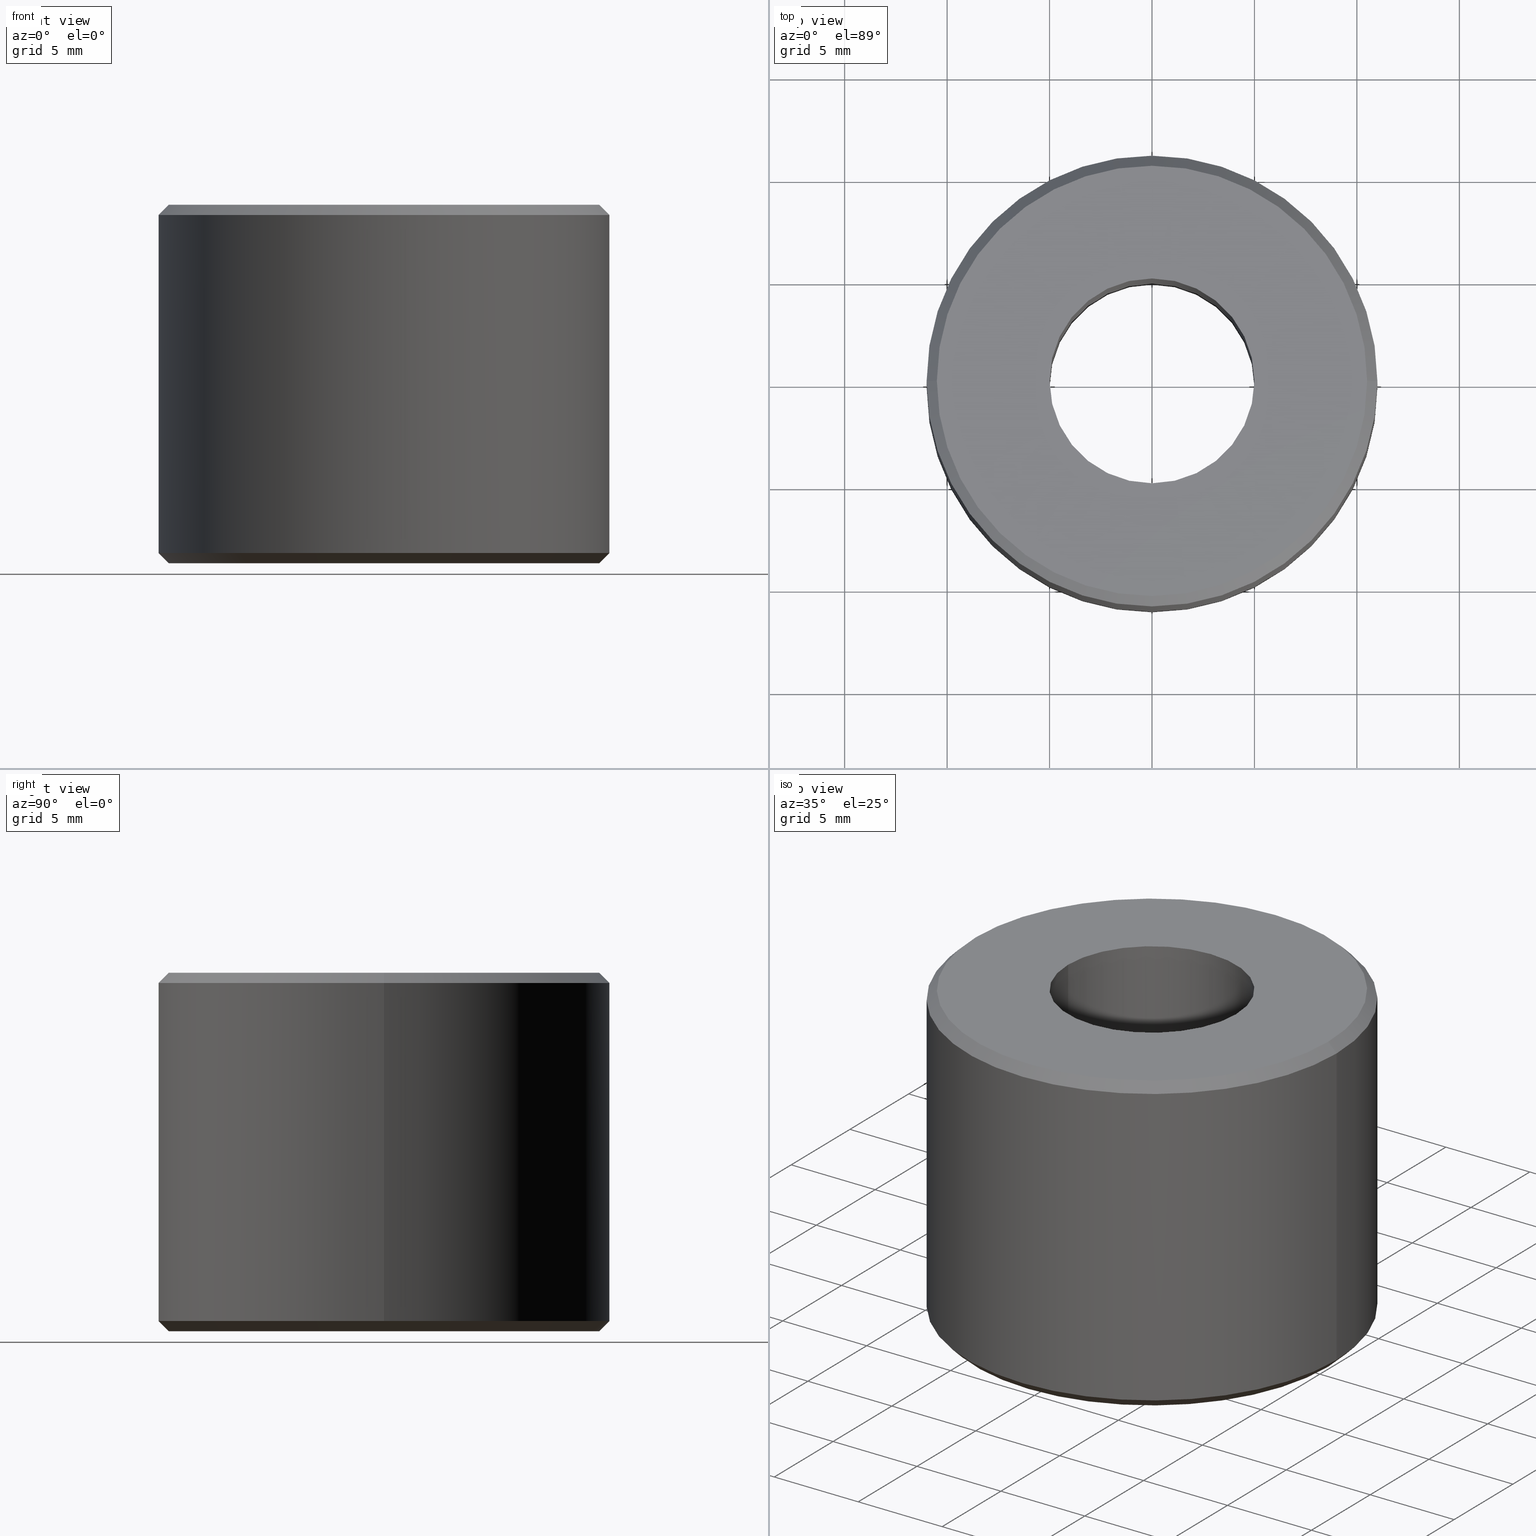
[diagram: canonical four-view strip — front | top / right | iso, engineering-drawing reading convention]
A machine part, canonical four-view strip (front | top / right | iso — engineering-drawing reading convention). The complete STEP part file that produces these views, byte-faithful:
ISO-10303-21;
HEADER;
FILE_DESCRIPTION (( 'STEP AP203' ),
    '1' );
FILE_NAME ('UM ER 16 M.STEP',
    '2019-04-22T08:59:13',
    ( '' ),
    ( '' ),
    'SwSTEP 2.0',
    'SolidWorks 2014',
    '' );
FILE_SCHEMA (( 'CONFIG_CONTROL_DESIGN' ));
ENDSEC;

DATA;
#1 = DIRECTION ( 'NONE',  ( 1.000000000000000000, 0.0000000000000000000, 0.0000000000000000000 ) ) ;
#2 = ORIENTED_EDGE ( 'NONE', *, *, #90, .T. ) ;
#3 = DIRECTION ( 'NONE',  ( -0.0000000000000000000, -0.0000000000000000000, 1.000000000000000000 ) ) ;
#4 = UNCERTAINTY_MEASURE_WITH_UNIT (LENGTH_MEASURE( 1.000000000000000100E-005 ), #173, 'distance_accuracy_value', 'NONE');
#5 = ORIENTED_EDGE ( 'NONE', *, *, #46, .F. ) ;
#6 = ORIENTED_EDGE ( 'NONE', *, *, #113, .T. ) ;
#7 = AXIS2_PLACEMENT_3D ( 'NONE', #239, #159, #211 ) ;
#8 = PERSON_AND_ORGANIZATION ( #341, #319 ) ;
#9 = FACE_OUTER_BOUND ( 'NONE', #192, .T. ) ;
#10 = EDGE_CURVE ( 'NONE', #26, #116, #66, .T. ) ;
#11 = FACE_OUTER_BOUND ( 'NONE', #60, .T. ) ;
#12 = ORIENTED_EDGE ( 'NONE', *, *, #323, .F. ) ;
#13 =( NAMED_UNIT ( * ) SI_UNIT ( $, .STERADIAN. ) SOLID_ANGLE_UNIT ( ) );
#14 = CC_DESIGN_APPROVAL ( #185, ( #19 ) ) ;
#15 = DIRECTION ( 'NONE',  ( -1.000000000000000000, 0.0000000000000000000, 0.0000000000000000000 ) ) ;
#16 = VERTEX_POINT ( 'NONE', #78 ) ;
#17 = CONICAL_SURFACE ( 'NONE', #312, 10.50000000000078700, 0.7853981633974482800 ) ;
#18 = PLANE ( 'NONE',  #282 ) ;
#19 = SECURITY_CLASSIFICATION ( '', '', #275 ) ;
#20 = CARTESIAN_POINT ( 'NONE',  ( 0.0000000000000000000, 0.0000000000000000000, 17.00000000000044400 ) ) ;
#21 = PERSON_AND_ORGANIZATION ( #341, #319 ) ;
#22 = CIRCLE ( 'NONE', #7, 11.00000000000006600 ) ;
#23 = DIRECTION ( 'NONE',  ( -0.7071067811865474600, 8.659560562354931600E-017, 0.7071067811865475700 ) ) ;
#24 = DIRECTION ( 'NONE',  ( 1.000000000000000000, 0.0000000000000000000, 0.0000000000000000000 ) ) ;
#25 = AXIS2_PLACEMENT_3D ( 'NONE', #180, #100, #320 ) ;
#26 = VERTEX_POINT ( 'NONE', #342 ) ;
#27 = CARTESIAN_POINT ( 'NONE',  ( 5.000000000000000000, 0.0000000000000000000, 4.440892098500626200E-013 ) ) ;
#28 = EDGE_LOOP ( 'NONE', ( #182, #44, #324, #223 ) ) ;
#29 = DIRECTION ( 'NONE',  ( -0.0000000000000000000, -0.0000000000000000000, 1.000000000000000000 ) ) ;
#30 = COORDINATED_UNIVERSAL_TIME_OFFSET ( 5, 30, .AHEAD. ) ;
#31 = APPROVAL_STATUS ( 'not_yet_approved' ) ;
#32 = MECHANICAL_CONTEXT ( 'NONE', #147, 'mechanical' ) ;
#33 = CARTESIAN_POINT ( 'NONE',  ( -10.50000000000078700, 1.316495309083456900E-015, 4.440892098500626200E-013 ) ) ;
#34 = DIRECTION ( 'NONE',  ( -0.0000000000000000000, -0.0000000000000000000, 1.000000000000000000 ) ) ;
#35 = CC_DESIGN_DATE_AND_TIME_ASSIGNMENT ( #127, #86, ( #19 ) ) ;
#36 = VERTEX_POINT ( 'NONE', #75 ) ;
#37 = SHAPE_DEFINITION_REPRESENTATION ( #54, #291 ) ;
#38 = CC_DESIGN_PERSON_AND_ORGANIZATION_ASSIGNMENT ( #242, #345, ( #266 ) ) ;
#39 = VERTEX_POINT ( 'NONE', #102 ) ;
#40 = ADVANCED_FACE ( 'NONE', ( #317 ), #257, .T. ) ;
#41 = LINE ( 'NONE', #229, #224 ) ;
#42 = LINE ( 'NONE', #179, #172 ) ;
#43 = FACE_OUTER_BOUND ( 'NONE', #249, .T. ) ;
#44 = ORIENTED_EDGE ( 'NONE', *, *, #216, .F. ) ;
#45 = DATE_AND_TIME ( #119, #194 ) ;
#46 = EDGE_CURVE ( 'NONE', #290, #39, #238, .T. ) ;
#47 = AXIS2_PLACEMENT_3D ( 'NONE', #176, #322, #151 ) ;
#48 = ORIENTED_EDGE ( 'NONE', *, *, #62, .F. ) ;
#49 = ADVANCED_FACE ( 'NONE', ( #197 ), #17, .T. ) ;
#50 = CARTESIAN_POINT ( 'NONE',  ( 4.999999999999999100, 0.0000000000000000000, 116.0570158932235600 ) ) ;
#51 = CYLINDRICAL_SURFACE ( 'NONE', #272, 11.00000000000006600 ) ;
#52 = APPROVAL_ROLE ( '' ) ;
#53 = ORIENTED_EDGE ( 'NONE', *, *, #206, .F. ) ;
#54 = PRODUCT_DEFINITION_SHAPE ( 'NONE', 'NONE',  #251 ) ;
#55 = PERSON_AND_ORGANIZATION_ROLE ( 'design_supplier' ) ;
#56 = DIRECTION ( 'NONE',  ( 0.0000000000000000000, -0.0000000000000000000, 1.000000000000000000 ) ) ;
#57 = PERSON_AND_ORGANIZATION ( #341, #319 ) ;
#58 = DIRECTION ( 'NONE',  ( -0.7071067811865574500, 0.0000000000000000000, -0.7071067811865376900 ) ) ;
#59 = CARTESIAN_POINT ( 'NONE',  ( 10.50000000000078700, 0.0000000000000000000, 4.440892098500626200E-013 ) ) ;
#60 = EDGE_LOOP ( 'NONE', ( #212, #12, #148, #2 ) ) ;
#61 = VERTEX_POINT ( 'NONE', #181 ) ;
#62 = EDGE_CURVE ( 'NONE', #116, #36, #68, .T. ) ;
#63 = CIRCLE ( 'NONE', #260, 4.999999999999999100 ) ;
#64 = VECTOR ( 'NONE', #297, 1000.000000000000000 ) ;
#65 = ORIENTED_EDGE ( 'NONE', *, *, #281, .T. ) ;
#66 = CIRCLE ( 'NONE', #47, 10.50000000000078700 ) ;
#67 = PERSON_AND_ORGANIZATION ( #341, #319 ) ;
#68 = LINE ( 'NONE', #129, #325 ) ;
#69 = LINE ( 'NONE', #271, #105 ) ;
#70 = CARTESIAN_POINT ( 'NONE',  ( 0.0000000000000000000, 0.0000000000000000000, 17.50000000000043300 ) ) ;
#71 = CARTESIAN_POINT ( 'NONE',  ( 0.0000000000000000000, 0.0000000000000000000, 4.440892098500626200E-013 ) ) ;
#72 = ORIENTED_EDGE ( 'NONE', *, *, #162, .F. ) ;
#73 = DIRECTION ( 'NONE',  ( -0.0000000000000000000, -0.0000000000000000000, 1.000000000000000000 ) ) ;
#74 = EDGE_CURVE ( 'NONE', #16, #274, #79, .T. ) ;
#75 = CARTESIAN_POINT ( 'NONE',  ( -11.00000000000006600, 1.347111479062096500E-015, 0.4999999999997228900 ) ) ;
#76 = CALENDAR_DATE ( 2019, 22, 4 ) ;
#77 = CYLINDRICAL_SURFACE ( 'NONE', #183, 4.999999999999999100 ) ;
#78 = CARTESIAN_POINT ( 'NONE',  ( -5.000000000000000000, 6.123233995736766300E-016, 4.440892098500626200E-013 ) ) ;
#79 = CIRCLE ( 'NONE', #346, 5.000000000000000000 ) ;
#80 = ORIENTED_EDGE ( 'NONE', *, *, #263, .T. ) ;
#81 = APPROVAL_STATUS ( 'not_yet_approved' ) ;
#82 = DIRECTION ( 'NONE',  ( -0.0000000000000000000, -0.0000000000000000000, 1.000000000000000000 ) ) ;
#83 = DATE_AND_TIME ( #153, #225 ) ;
#84 = CIRCLE ( 'NONE', #227, 10.50000000000078700 ) ;
#85 = CARTESIAN_POINT ( 'NONE',  ( 0.0000000000000000000, 0.0000000000000000000, 17.50000000000043300 ) ) ;
#86 = DATE_TIME_ROLE ( 'classification_date' ) ;
#87 = CARTESIAN_POINT ( 'NONE',  ( 0.0000000000000000000, 0.0000000000000000000, 116.0570158932235600 ) ) ;
#88 = CARTESIAN_POINT ( 'NONE',  ( 0.0000000000000000000, 5.000000000000000000, 4.440892098500626200E-013 ) ) ;
#89 = VECTOR ( 'NONE', #292, 1000.000000000000000 ) ;
#90 = EDGE_CURVE ( 'NONE', #334, #39, #214, .T. ) ;
#91 = ADVANCED_FACE ( 'NONE', ( #107, #92 ), #337, .F. ) ;
#92 = FACE_BOUND ( 'NONE', #267, .T. ) ;
#93 = EDGE_CURVE ( 'NONE', #61, #177, #168, .T. ) ;
#94 = CYLINDRICAL_SURFACE ( 'NONE', #270, 11.00000000000006600 ) ;
#95 = APPROVAL_DATE_TIME ( #160, #111 ) ;
#96 = DIRECTION ( 'NONE',  ( -0.0000000000000000000, -0.0000000000000000000, 1.000000000000000000 ) ) ;
#97 = CC_DESIGN_PERSON_AND_ORGANIZATION_ASSIGNMENT ( #67, #244, ( #19 ) ) ;
#98 = ORIENTED_EDGE ( 'NONE', *, *, #216, .T. ) ;
#99 = ADVANCED_FACE ( 'NONE', ( #299 ), #128, .F. ) ;
#100 = DIRECTION ( 'NONE',  ( -0.0000000000000000000, -0.0000000000000000000, 1.000000000000000000 ) ) ;
#101 = APPROVAL_PERSON_ORGANIZATION ( #169, #111, #327 ) ;
#102 = CARTESIAN_POINT ( 'NONE',  ( 11.00000000000006400, 0.0000000000000000000, 17.00000000000044400 ) ) ;
#103 = DIRECTION ( 'NONE',  ( -0.0000000000000000000, -0.0000000000000000000, 1.000000000000000000 ) ) ;
#104 = AXIS2_PLACEMENT_3D ( 'NONE', #165, #110, #328 ) ;
#105 = VECTOR ( 'NONE', #58, 999.9999999999998900 ) ;
#106 = DIRECTION ( 'NONE',  ( 1.000000000000000000, 0.0000000000000000000, 0.0000000000000000000 ) ) ;
#107 = FACE_OUTER_BOUND ( 'NONE', #256, .T. ) ;
#108 = AXIS2_PLACEMENT_3D ( 'NONE', #88, #56, #141 ) ;
#109 = APPLICATION_PROTOCOL_DEFINITION ( 'international standard', 'config_control_design', 1994, #215 ) ;
#110 = DIRECTION ( 'NONE',  ( -0.0000000000000000000, -0.0000000000000000000, 1.000000000000000000 ) ) ;
#111 = APPROVAL ( #81, 'UNSPECIFIED' ) ;
#112 = DIRECTION ( 'NONE',  ( 1.000000000000000000, 0.0000000000000000000, 0.0000000000000000000 ) ) ;
#113 = EDGE_CURVE ( 'NONE', #26, #290, #188, .T. ) ;
#114 = ORIENTED_EDGE ( 'NONE', *, *, #10, .F. ) ;
#115 = CC_DESIGN_APPROVAL ( #111, ( #251 ) ) ;
#116 = VERTEX_POINT ( 'NONE', #33 ) ;
#117 = CIRCLE ( 'NONE', #240, 10.50000000000006400 ) ;
#118 = DIRECTION ( 'NONE',  ( -0.0000000000000000000, -0.0000000000000000000, 1.000000000000000000 ) ) ;
#119 = CALENDAR_DATE ( 2019, 22, 4 ) ;
#120 = EDGE_LOOP ( 'NONE', ( #208, #53 ) ) ;
#121 = VECTOR ( 'NONE', #103, 1000.000000000000000 ) ;
#122 = CIRCLE ( 'NONE', #25, 11.00000000000006600 ) ;
#123 = CARTESIAN_POINT ( 'NONE',  ( 11.00000000000006600, 0.0000000000000000000, 116.0570158932235600 ) ) ;
#124 = DIRECTION ( 'NONE',  ( 0.7071067811865574500, 8.659560562355054900E-017, -0.7071067811865376900 ) ) ;
#125 = ORIENTED_EDGE ( 'NONE', *, *, #309, .T. ) ;
#126 = ORIENTED_EDGE ( 'NONE', *, *, #10, .T. ) ;
#127 = DATE_AND_TIME ( #200, #278 ) ;
#128 = CYLINDRICAL_SURFACE ( 'NONE', #104, 4.999999999999999100 ) ;
#129 = CARTESIAN_POINT ( 'NONE',  ( -10.50000000000078700, 1.285879139104817300E-015, 4.440892098500626200E-013 ) ) ;
#130 = ORIENTED_EDGE ( 'NONE', *, *, #164, .T. ) ;
#131 = DIRECTION ( 'NONE',  ( -1.000000000000000000, 0.0000000000000000000, 0.0000000000000000000 ) ) ;
#132 = EDGE_CURVE ( 'NONE', #290, #36, #22, .T. ) ;
#133 = ADVANCED_FACE ( 'NONE', ( #43 ), #77, .F. ) ;
#134 = DIRECTION ( 'NONE',  ( -0.0000000000000000000, -0.0000000000000000000, 1.000000000000000000 ) ) ;
#135 = EDGE_LOOP ( 'NONE', ( #280, #142, #332, #221 ) ) ;
#136 = CARTESIAN_POINT ( 'NONE',  ( -4.999999999999999100, 6.123233995736765300E-016, 17.50000000000043300 ) ) ;
#137 = APPROVAL_STATUS ( 'not_yet_approved' ) ;
#138 = PERSON_AND_ORGANIZATION ( #341, #319 ) ;
#139 = CARTESIAN_POINT ( 'NONE',  ( 0.0000000000000000000, 0.0000000000000000000, 4.440892098500626200E-013 ) ) ;
#140 = AXIS2_PLACEMENT_3D ( 'NONE', #193, #163, #268 ) ;
#141 = DIRECTION ( 'NONE',  ( 1.000000000000000000, 0.0000000000000000000, 0.0000000000000000000 ) ) ;
#142 = ORIENTED_EDGE ( 'NONE', *, *, #246, .T. ) ;
#143 = ORIENTED_EDGE ( 'NONE', *, *, #132, .F. ) ;
#144 = LOCAL_TIME ( 14, 29, 13.00000000000000000, #218 ) ;
#145 = CC_DESIGN_PERSON_AND_ORGANIZATION_ASSIGNMENT ( #21, #243, ( #251 ) ) ;
#146 = ORIENTED_EDGE ( 'NONE', *, *, #74, .F. ) ;
#147 = APPLICATION_CONTEXT ( 'configuration controlled 3d designs of mechanical parts and assemblies' ) ;
#148 = ORIENTED_EDGE ( 'NONE', *, *, #162, .T. ) ;
#149 = DIRECTION ( 'NONE',  ( 1.000000000000000000, 0.0000000000000000000, 0.0000000000000000000 ) ) ;
#150 = CONICAL_SURFACE ( 'NONE', #155, 11.00000000000006400, 0.7853981633974621600 ) ;
#151 = DIRECTION ( 'NONE',  ( 1.000000000000000000, 0.0000000000000000000, 0.0000000000000000000 ) ) ;
#152 = EDGE_LOOP ( 'NONE', ( #126, #262, #143, #247 ) ) ;
#153 = CALENDAR_DATE ( 2019, 22, 4 ) ;
#154 = CARTESIAN_POINT ( 'NONE',  ( 0.0000000000000000000, 0.0000000000000000000, 17.00000000000044400 ) ) ;
#155 = AXIS2_PLACEMENT_3D ( 'NONE', #187, #273, #131 ) ;
#156 = DIRECTION ( 'NONE',  ( -0.0000000000000000000, -0.0000000000000000000, 1.000000000000000000 ) ) ;
#157 = DIRECTION ( 'NONE',  ( -0.0000000000000000000, -0.0000000000000000000, 1.000000000000000000 ) ) ;
#158 = LINE ( 'NONE', #338, #89 ) ;
#159 = DIRECTION ( 'NONE',  ( -0.0000000000000000000, -0.0000000000000000000, 1.000000000000000000 ) ) ;
#160 = DATE_AND_TIME ( #233, #310 ) ;
#161 = DIRECTION ( 'NONE',  ( 1.000000000000000000, 0.0000000000000000000, 0.0000000000000000000 ) ) ;
#162 = EDGE_CURVE ( 'NONE', #237, #334, #69, .T. ) ;
#163 = DIRECTION ( 'NONE',  ( -0.0000000000000000000, -0.0000000000000000000, 1.000000000000000000 ) ) ;
#164 = EDGE_CURVE ( 'NONE', #116, #26, #84, .T. ) ;
#165 = CARTESIAN_POINT ( 'NONE',  ( 0.0000000000000000000, 0.0000000000000000000, 116.0570158932235600 ) ) ;
#166 = MANIFOLD_SOLID_BREP ( 'Revolve1', #230 ) ;
#167 = VERTEX_POINT ( 'NONE', #245 ) ;
#168 = CIRCLE ( 'NONE', #196, 4.999999999999999100 ) ;
#169 = PERSON_AND_ORGANIZATION ( #341, #319 ) ;
#170 = EDGE_CURVE ( 'NONE', #274, #61, #303, .T. ) ;
#171 = DIRECTION ( 'NONE',  ( 1.000000000000000000, 0.0000000000000000000, 0.0000000000000000000 ) ) ;
#172 = VECTOR ( 'NONE', #124, 999.9999999999998900 ) ;
#173 =( LENGTH_UNIT ( ) NAMED_UNIT ( * ) SI_UNIT ( .MILLI., .METRE. ) );
#174 = DIRECTION ( 'NONE',  ( 1.000000000000000000, 0.0000000000000000000, 0.0000000000000000000 ) ) ;
#175 =( GEOMETRIC_REPRESENTATION_CONTEXT ( 3 ) GLOBAL_UNCERTAINTY_ASSIGNED_CONTEXT ( ( #4 ) ) GLOBAL_UNIT_ASSIGNED_CONTEXT ( ( #173, #288, #13 ) ) REPRESENTATION_CONTEXT ( 'NONE', 'WORKASPACE' ) );
#176 = CARTESIAN_POINT ( 'NONE',  ( 0.0000000000000000000, 0.0000000000000000000, 4.440892098500626200E-013 ) ) ;
#177 = VERTEX_POINT ( 'NONE', #136 ) ;
#178 = FACE_BOUND ( 'NONE', #120, .T. ) ;
#179 = CARTESIAN_POINT ( 'NONE',  ( 11.00000000000006400, 1.347111479062096300E-015, 17.00000000000044400 ) ) ;
#180 = CARTESIAN_POINT ( 'NONE',  ( 0.0000000000000000000, 0.0000000000000000000, 0.4999999999997228900 ) ) ;
#181 = CARTESIAN_POINT ( 'NONE',  ( 4.999999999999999100, 0.0000000000000000000, 17.50000000000043300 ) ) ;
#182 = ORIENTED_EDGE ( 'NONE', *, *, #295, .F. ) ;
#183 = AXIS2_PLACEMENT_3D ( 'NONE', #87, #29, #24 ) ;
#184 = DIRECTION ( 'NONE',  ( 1.000000000000000000, 0.0000000000000000000, 0.0000000000000000000 ) ) ;
#185 = APPROVAL ( #137, 'UNSPECIFIED' ) ;
#186 = EDGE_LOOP ( 'NONE', ( #48, #130, #6, #202 ) ) ;
#187 = CARTESIAN_POINT ( 'NONE',  ( 0.0000000000000000000, 0.0000000000000000000, 17.00000000000044400 ) ) ;
#188 = LINE ( 'NONE', #59, #64 ) ;
#189 = CIRCLE ( 'NONE', #248, 10.50000000000006400 ) ;
#190 = ADVANCED_FACE ( 'NONE', ( #9 ), #94, .T. ) ;
#191 = PERSON_AND_ORGANIZATION_ROLE ( 'creator' ) ;
#192 = EDGE_LOOP ( 'NONE', ( #252, #283, #298, #5 ) ) ;
#193 = CARTESIAN_POINT ( 'NONE',  ( 0.0000000000000000000, 0.0000000000000000000, 4.440892098500626200E-013 ) ) ;
#194 = LOCAL_TIME ( 14, 29, 13.00000000000000000, #265 ) ;
#195 = CARTESIAN_POINT ( 'NONE',  ( 0.0000000000000000000, 0.0000000000000000000, 4.440892098500626200E-013 ) ) ;
#196 = AXIS2_PLACEMENT_3D ( 'NONE', #85, #34, #161 ) ;
#197 = FACE_OUTER_BOUND ( 'NONE', #152, .T. ) ;
#198 = ORIENTED_EDGE ( 'NONE', *, *, #74, .T. ) ;
#199 = CIRCLE ( 'NONE', #235, 11.00000000000006400 ) ;
#200 = CALENDAR_DATE ( 2019, 22, 4 ) ;
#201 = CONICAL_SURFACE ( 'NONE', #279, 10.50000000000078700, 0.7853981633974482800 ) ;
#202 = ORIENTED_EDGE ( 'NONE', *, *, #246, .F. ) ;
#203 = ORIENTED_EDGE ( 'NONE', *, *, #170, .F. ) ;
#204 = DIRECTION ( 'NONE',  ( -0.0000000000000000000, -0.0000000000000000000, 1.000000000000000000 ) ) ;
#205 = PERSON_AND_ORGANIZATION ( #341, #319 ) ;
#206 = EDGE_CURVE ( 'NONE', #177, #61, #63, .T. ) ;
#207 = PRODUCT_DEFINITION_FORMATION_WITH_SPECIFIED_SOURCE ( 'ANY', '', #266, .NOT_KNOWN. ) ;
#208 = ORIENTED_EDGE ( 'NONE', *, *, #93, .F. ) ;
#209 = ADVANCED_FACE ( 'NONE', ( #250 ), #201, .T. ) ;
#210 = CARTESIAN_POINT ( 'NONE',  ( -10.50000000000006400, 0.0000000000000000000, 17.50000000000043300 ) ) ;
#211 = DIRECTION ( 'NONE',  ( 1.000000000000000000, 0.0000000000000000000, 0.0000000000000000000 ) ) ;
#212 = ORIENTED_EDGE ( 'NONE', *, *, #281, .F. ) ;
#213 = DIRECTION ( 'NONE',  ( -0.0000000000000000000, -0.0000000000000000000, 1.000000000000000000 ) ) ;
#214 = CIRCLE ( 'NONE', #276, 11.00000000000006400 ) ;
#215 = APPLICATION_CONTEXT ( 'configuration controlled 3d designs of mechanical parts and assemblies' ) ;
#216 = EDGE_CURVE ( 'NONE', #274, #16, #222, .T. ) ;
#217 = ADVANCED_FACE ( 'NONE', ( #11 ), #150, .T. ) ;
#218 = COORDINATED_UNIVERSAL_TIME_OFFSET ( 5, 30, .AHEAD. ) ;
#219 = CC_DESIGN_DATE_AND_TIME_ASSIGNMENT ( #83, #302, ( #251 ) ) ;
#220 = CARTESIAN_POINT ( 'NONE',  ( 0.0000000000000000000, 0.0000000000000000000, 116.0570158932235600 ) ) ;
#221 = ORIENTED_EDGE ( 'NONE', *, *, #90, .F. ) ;
#222 = CIRCLE ( 'NONE', #140, 5.000000000000000000 ) ;
#223 = ORIENTED_EDGE ( 'NONE', *, *, #93, .T. ) ;
#224 = VECTOR ( 'NONE', #264, 1000.000000000000000 ) ;
#225 = LOCAL_TIME ( 14, 29, 13.00000000000000000, #301 ) ;
#226 = APPLICATION_PROTOCOL_DEFINITION ( 'international standard', 'config_control_design', 1994, #147 ) ;
#227 = AXIS2_PLACEMENT_3D ( 'NONE', #347, #213, #277 ) ;
#228 = ORIENTED_EDGE ( 'NONE', *, *, #164, .F. ) ;
#229 = CARTESIAN_POINT ( 'NONE',  ( -11.00000000000006600, 1.347111479062096500E-015, 116.0570158932235600 ) ) ;
#230 = CLOSED_SHELL ( 'NONE', ( #40, #190, #49, #133, #99, #91, #209, #333, #217, #331 ) ) ;
#231 = DIRECTION ( 'NONE',  ( 1.000000000000000000, 0.0000000000000000000, 0.0000000000000000000 ) ) ;
#232 = VECTOR ( 'NONE', #157, 1000.000000000000000 ) ;
#233 = CALENDAR_DATE ( 2019, 22, 4 ) ;
#234 = CARTESIAN_POINT ( 'NONE',  ( 0.0000000000000000000, 0.0000000000000000000, 17.50000000000043300 ) ) ;
#235 = AXIS2_PLACEMENT_3D ( 'NONE', #20, #73, #231 ) ;
#236 = DIRECTION ( 'NONE',  ( 1.000000000000000000, 0.0000000000000000000, 0.0000000000000000000 ) ) ;
#237 = VERTEX_POINT ( 'NONE', #210 ) ;
#238 = LINE ( 'NONE', #123, #121 ) ;
#239 = CARTESIAN_POINT ( 'NONE',  ( 0.0000000000000000000, 0.0000000000000000000, 0.4999999999997228900 ) ) ;
#240 = AXIS2_PLACEMENT_3D ( 'NONE', #234, #204, #149 ) ;
#241 = CC_DESIGN_SECURITY_CLASSIFICATION ( #19, ( #207 ) ) ;
#242 = PERSON_AND_ORGANIZATION ( #341, #319 ) ;
#243 = PERSON_AND_ORGANIZATION_ROLE ( 'creator' ) ;
#244 = PERSON_AND_ORGANIZATION_ROLE ( 'classification_officer' ) ;
#245 = CARTESIAN_POINT ( 'NONE',  ( 10.50000000000006400, 1.316495309083412500E-015, 17.50000000000043300 ) ) ;
#246 = EDGE_CURVE ( 'NONE', #36, #290, #122, .T. ) ;
#247 = ORIENTED_EDGE ( 'NONE', *, *, #113, .F. ) ;
#248 = AXIS2_PLACEMENT_3D ( 'NONE', #70, #96, #174 ) ;
#249 = EDGE_LOOP ( 'NONE', ( #146, #344, #308, #203 ) ) ;
#250 = FACE_OUTER_BOUND ( 'NONE', #186, .T. ) ;
#251 = PRODUCT_DEFINITION ( 'UNKNOWN', '', #207, #304 ) ;
#252 = ORIENTED_EDGE ( 'NONE', *, *, #132, .T. ) ;
#253 = APPROVAL ( #31, 'UNSPECIFIED' ) ;
#254 = CC_DESIGN_PERSON_AND_ORGANIZATION_ASSIGNMENT ( #205, #191, ( #207 ) ) ;
#255 = DIRECTION ( 'NONE',  ( -1.000000000000000000, 0.0000000000000000000, -0.0000000000000000000 ) ) ;
#256 = EDGE_LOOP ( 'NONE', ( #114, #228 ) ) ;
#257 = CONICAL_SURFACE ( 'NONE', #307, 11.00000000000006400, 0.7853981633974621600 ) ;
#258 = DIRECTION ( 'NONE',  ( -0.0000000000000000000, -0.0000000000000000000, 1.000000000000000000 ) ) ;
#259 = CARTESIAN_POINT ( 'NONE',  ( 0.0000000000000000000, 10.50000000000006400, 17.50000000000043700 ) ) ;
#260 = AXIS2_PLACEMENT_3D ( 'NONE', #326, #156, #236 ) ;
#261 = CARTESIAN_POINT ( 'NONE',  ( 11.00000000000006600, 0.0000000000000000000, 0.4999999999997228900 ) ) ;
#262 = ORIENTED_EDGE ( 'NONE', *, *, #62, .T. ) ;
#263 = EDGE_CURVE ( 'NONE', #167, #237, #117, .T. ) ;
#264 = DIRECTION ( 'NONE',  ( -0.0000000000000000000, -0.0000000000000000000, 1.000000000000000000 ) ) ;
#265 = COORDINATED_UNIVERSAL_TIME_OFFSET ( 5, 30, .AHEAD. ) ;
#266 = PRODUCT ( 'UM ER 16 M', 'UM ER 16 M', '', ( #32 ) ) ;
#267 = EDGE_LOOP ( 'NONE', ( #98, #198 ) ) ;
#268 = DIRECTION ( 'NONE',  ( 1.000000000000000000, 0.0000000000000000000, 0.0000000000000000000 ) ) ;
#269 = EDGE_CURVE ( 'NONE', #36, #334, #41, .T. ) ;
#270 = AXIS2_PLACEMENT_3D ( 'NONE', #220, #134, #1 ) ;
#271 = CARTESIAN_POINT ( 'NONE',  ( -11.00000000000006400, 0.0000000000000000000, 17.00000000000044400 ) ) ;
#272 = AXIS2_PLACEMENT_3D ( 'NONE', #289, #118, #171 ) ;
#273 = DIRECTION ( 'NONE',  ( 0.0000000000000000000, 0.0000000000000000000, -1.000000000000000000 ) ) ;
#274 = VERTEX_POINT ( 'NONE', #27 ) ;
#275 = SECURITY_CLASSIFICATION_LEVEL ( 'unclassified' ) ;
#276 = AXIS2_PLACEMENT_3D ( 'NONE', #330, #3, #305 ) ;
#277 = DIRECTION ( 'NONE',  ( 1.000000000000000000, 0.0000000000000000000, 0.0000000000000000000 ) ) ;
#278 = LOCAL_TIME ( 14, 29, 13.00000000000000000, #340 ) ;
#279 = AXIS2_PLACEMENT_3D ( 'NONE', #139, #82, #106 ) ;
#280 = ORIENTED_EDGE ( 'NONE', *, *, #269, .F. ) ;
#281 = EDGE_CURVE ( 'NONE', #167, #39, #42, .T. ) ;
#282 = AXIS2_PLACEMENT_3D ( 'NONE', #259, #315, #255 ) ;
#283 = ORIENTED_EDGE ( 'NONE', *, *, #269, .T. ) ;
#284 = CC_DESIGN_PERSON_AND_ORGANIZATION_ASSIGNMENT ( #138, #55, ( #207 ) ) ;
#285 = DIRECTION ( 'NONE',  ( 0.0000000000000000000, 0.0000000000000000000, 1.000000000000000000 ) ) ;
#286 = APPROVAL_DATE_TIME ( #349, #253 ) ;
#287 = FACE_OUTER_BOUND ( 'NONE', #135, .T. ) ;
#288 =( NAMED_UNIT ( * ) PLANE_ANGLE_UNIT ( ) SI_UNIT ( $, .RADIAN. ) );
#289 = CARTESIAN_POINT ( 'NONE',  ( 0.0000000000000000000, 0.0000000000000000000, 116.0570158932235600 ) ) ;
#290 = VERTEX_POINT ( 'NONE', #261 ) ;
#291 = ADVANCED_BREP_SHAPE_REPRESENTATION ( 'UM ER 16 M', ( #166, #300 ), #175 ) ;
#292 = DIRECTION ( 'NONE',  ( -0.0000000000000000000, -0.0000000000000000000, 1.000000000000000000 ) ) ;
#293 = APPROVAL_PERSON_ORGANIZATION ( #8, #253, #348 ) ;
#294 = CC_DESIGN_APPROVAL ( #253, ( #207 ) ) ;
#295 = EDGE_CURVE ( 'NONE', #16, #177, #158, .T. ) ;
#296 = PRODUCT_RELATED_PRODUCT_CATEGORY ( 'detail', '', ( #266 ) ) ;
#297 = DIRECTION ( 'NONE',  ( 0.7071067811865474600, 0.0000000000000000000, 0.7071067811865475700 ) ) ;
#298 = ORIENTED_EDGE ( 'NONE', *, *, #309, .F. ) ;
#299 = FACE_OUTER_BOUND ( 'NONE', #28, .T. ) ;
#300 = AXIS2_PLACEMENT_3D ( 'NONE', #311, #285, #313 ) ;
#301 = COORDINATED_UNIVERSAL_TIME_OFFSET ( 5, 30, .AHEAD. ) ;
#302 = DATE_TIME_ROLE ( 'creation_date' ) ;
#303 = LINE ( 'NONE', #50, #232 ) ;
#304 = DESIGN_CONTEXT ( 'detailed design', #215, 'design' ) ;
#305 = DIRECTION ( 'NONE',  ( 1.000000000000000000, 0.0000000000000000000, 0.0000000000000000000 ) ) ;
#306 = DIRECTION ( 'NONE',  ( -0.0000000000000000000, -0.0000000000000000000, 1.000000000000000000 ) ) ;
#307 = AXIS2_PLACEMENT_3D ( 'NONE', #154, #318, #15 ) ;
#308 = ORIENTED_EDGE ( 'NONE', *, *, #206, .T. ) ;
#309 = EDGE_CURVE ( 'NONE', #39, #334, #199, .T. ) ;
#310 = LOCAL_TIME ( 14, 29, 13.00000000000000000, #30 ) ;
#311 = CARTESIAN_POINT ( 'NONE',  ( 0.0000000000000000000, 0.0000000000000000000, 0.0000000000000000000 ) ) ;
#312 = AXIS2_PLACEMENT_3D ( 'NONE', #71, #258, #184 ) ;
#313 = DIRECTION ( 'NONE',  ( 1.000000000000000000, 0.0000000000000000000, 0.0000000000000000000 ) ) ;
#314 = EDGE_LOOP ( 'NONE', ( #316, #80 ) ) ;
#315 = DIRECTION ( 'NONE',  ( 0.0000000000000000000, 0.0000000000000000000, -1.000000000000000000 ) ) ;
#316 = ORIENTED_EDGE ( 'NONE', *, *, #323, .T. ) ;
#317 = FACE_OUTER_BOUND ( 'NONE', #339, .T. ) ;
#318 = DIRECTION ( 'NONE',  ( 0.0000000000000000000, 0.0000000000000000000, -1.000000000000000000 ) ) ;
#319 = ORGANIZATION ( 'UNSPECIFIED', 'UNSPECIFIED', '' ) ;
#320 = DIRECTION ( 'NONE',  ( 1.000000000000000000, 0.0000000000000000000, 0.0000000000000000000 ) ) ;
#321 = ORIENTED_EDGE ( 'NONE', *, *, #263, .F. ) ;
#322 = DIRECTION ( 'NONE',  ( -0.0000000000000000000, -0.0000000000000000000, 1.000000000000000000 ) ) ;
#323 = EDGE_CURVE ( 'NONE', #237, #167, #189, .T. ) ;
#324 = ORIENTED_EDGE ( 'NONE', *, *, #170, .T. ) ;
#325 = VECTOR ( 'NONE', #23, 1000.000000000000000 ) ;
#326 = CARTESIAN_POINT ( 'NONE',  ( 0.0000000000000000000, 0.0000000000000000000, 17.50000000000043300 ) ) ;
#327 = APPROVAL_ROLE ( '' ) ;
#328 = DIRECTION ( 'NONE',  ( 1.000000000000000000, 0.0000000000000000000, 0.0000000000000000000 ) ) ;
#329 = APPROVAL_DATE_TIME ( #45, #185 ) ;
#330 = CARTESIAN_POINT ( 'NONE',  ( 0.0000000000000000000, 0.0000000000000000000, 17.00000000000044400 ) ) ;
#331 = ADVANCED_FACE ( 'NONE', ( #178, #343 ), #18, .F. ) ;
#332 = ORIENTED_EDGE ( 'NONE', *, *, #46, .T. ) ;
#333 = ADVANCED_FACE ( 'NONE', ( #287 ), #51, .T. ) ;
#334 = VERTEX_POINT ( 'NONE', #336 ) ;
#335 = APPROVAL_PERSON_ORGANIZATION ( #57, #185, #52 ) ;
#336 = CARTESIAN_POINT ( 'NONE',  ( -11.00000000000006400, 1.347111479062096300E-015, 17.00000000000044400 ) ) ;
#337 = PLANE ( 'NONE',  #108 ) ;
#338 = CARTESIAN_POINT ( 'NONE',  ( -4.999999999999999100, 6.123233995736765300E-016, 116.0570158932235600 ) ) ;
#339 = EDGE_LOOP ( 'NONE', ( #321, #65, #125, #72 ) ) ;
#340 = COORDINATED_UNIVERSAL_TIME_OFFSET ( 5, 30, .AHEAD. ) ;
#341 = PERSON ( 'UNSPECIFIED', 'UNSPECIFIED', 'UNSPECIFIED', ('UNSPECIFIED'), ('UNSPECIFIED'), ('UNSPECIFIED') ) ;
#342 = CARTESIAN_POINT ( 'NONE',  ( 10.50000000000078700, 0.0000000000000000000, 4.440892098500626200E-013 ) ) ;
#343 = FACE_OUTER_BOUND ( 'NONE', #314, .T. ) ;
#344 = ORIENTED_EDGE ( 'NONE', *, *, #295, .T. ) ;
#345 = PERSON_AND_ORGANIZATION_ROLE ( 'design_owner' ) ;
#346 = AXIS2_PLACEMENT_3D ( 'NONE', #195, #306, #112 ) ;
#347 = CARTESIAN_POINT ( 'NONE',  ( 0.0000000000000000000, 0.0000000000000000000, 4.440892098500626200E-013 ) ) ;
#348 = APPROVAL_ROLE ( '' ) ;
#349 = DATE_AND_TIME ( #76, #144 ) ;
ENDSEC;
END-ISO-10303-21;
